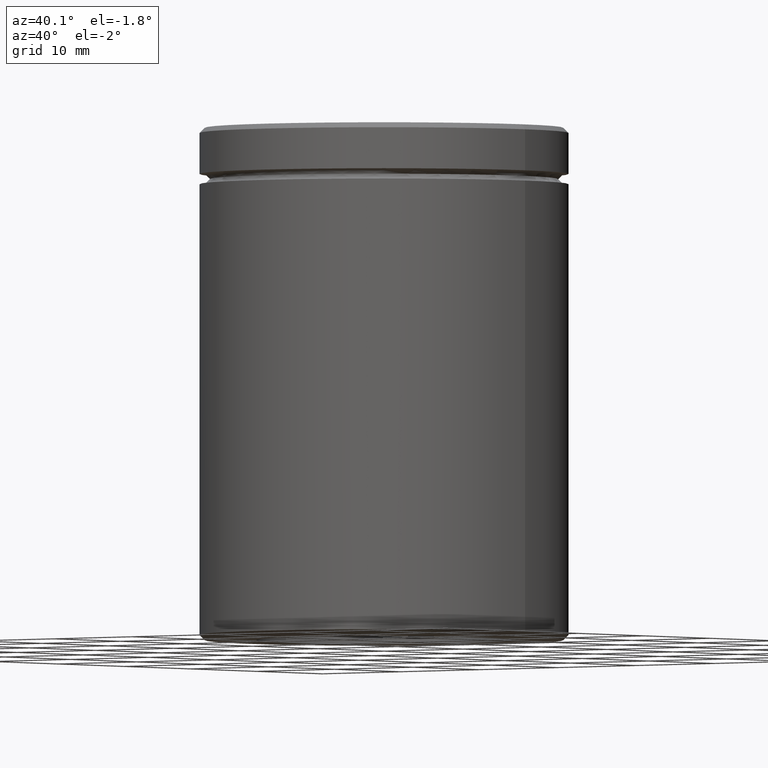
[diagram: clean part render]
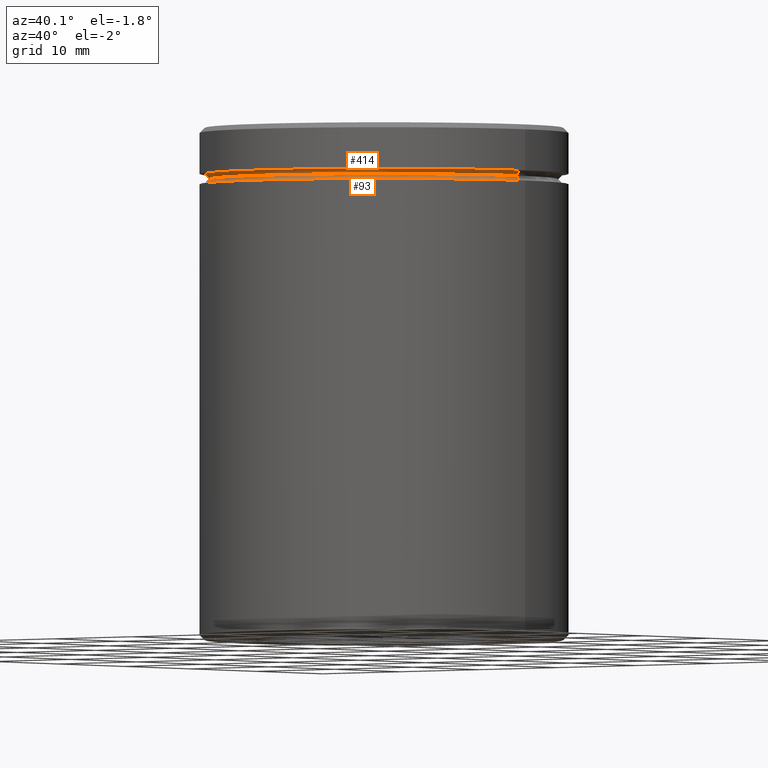
[diagram: same view with one multi-face feature highlighted, each face labeled with its STEP entity id]
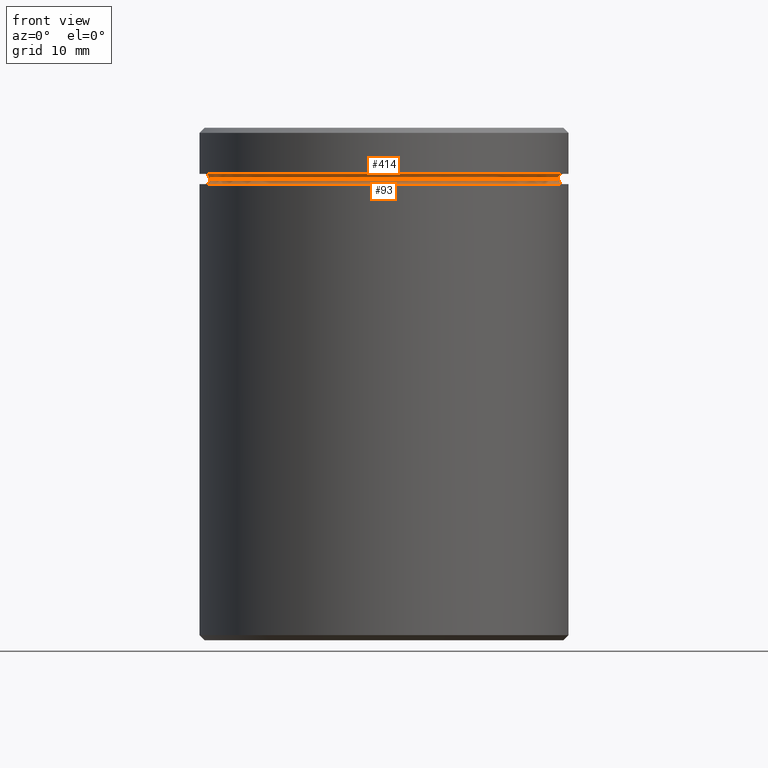
[diagram: same view with one multi-face feature highlighted, each face labeled with its STEP entity id]
A machine part, auxiliary view. The highlighted faces form ONE feature: a constant-radius fillet chain: 2 tangent blend faces with common blend radius 0.5 mm. The faces share edges in the B-rep.
A second angle (front view) of the same feature is appended — it is thin or edge-on in the first view.
Their STEP definitions:
[1] entity #414 (Torus):
#25 = VERTEX_POINT ( 'NONE', #35 ) ;
#32 = DIRECTION ( 'NONE',  ( -1.000000000000000000, 0.000000000000000000, 0.000000000000000000 ) ) ;
#35 = CARTESIAN_POINT ( 'NONE',  ( 17.49999999999999645, 2.143131898507867854E-15, -4.500000000000000888 ) ) ;
#68 = AXIS2_PLACEMENT_3D ( 'NONE', #395, #566, #71 ) ;
#71 = DIRECTION ( 'NONE',  ( 0.000000000000000000, 0.000000000000000000, -1.000000000000000000 ) ) ;
#92 = ORIENTED_EDGE ( 'NONE', *, *, #453, .T. ) ;
#100 = ORIENTED_EDGE ( 'NONE', *, *, #410, .F. ) ;
#102 = EDGE_LOOP ( 'NONE', ( #92, #384, #179, #100 ) ) ;
#110 = CARTESIAN_POINT ( 'NONE',  ( 0.000000000000000000, 0.000000000000000000, -5.000000000000000888 ) ) ;
#126 = DIRECTION ( 'NONE',  ( -1.000000000000000000, -1.224646799147349509E-16, 0.000000000000000000 ) ) ;
#132 = CARTESIAN_POINT ( 'NONE',  ( -17.49999999999999645, 0.000000000000000000, -4.500000000000000888 ) ) ;
#135 = CARTESIAN_POINT ( 'NONE',  ( 16.99999999999999645, 0.000000000000000000, -4.999999999999999112 ) ) ;
#137 = CIRCLE ( 'NONE', #396, 17.49999999999999645 ) ;
#173 = CARTESIAN_POINT ( 'NONE',  ( 0.000000000000000000, 0.000000000000000000, -4.500000000000000888 ) ) ;
#179 = ORIENTED_EDGE ( 'NONE', *, *, #240, .F. ) ;
#201 = FACE_OUTER_BOUND ( 'NONE', #102, .T. ) ;
#212 = EDGE_CURVE ( 'NONE', #554, #25, #522, .T. ) ;
#216 = AXIS2_PLACEMENT_3D ( 'NONE', #400, #266, #460 ) ;
#240 = EDGE_CURVE ( 'NONE', #466, #25, #137, .T. ) ;
#266 = DIRECTION ( 'NONE',  ( -0.000000000000000000, -0.000000000000000000, 1.000000000000000000 ) ) ;
#275 = AXIS2_PLACEMENT_3D ( 'NONE', #355, #528, #126 ) ;
#307 = CIRCLE ( 'NONE', #68, 0.5000000000000004441 ) ;
#310 = VERTEX_POINT ( 'NONE', #516 ) ;
#330 = AXIS2_PLACEMENT_3D ( 'NONE', #110, #477, #32 ) ;
#338 = TOROIDAL_SURFACE ( 'NONE', #330, 17.49999999999999645, 0.5000000000000000000 ) ;
#355 = CARTESIAN_POINT ( 'NONE',  ( 17.49999999999999645, 2.143131898507867854E-15, -5.000000000000000888 ) ) ;
#358 = DIRECTION ( 'NONE',  ( -0.000000000000000000, -0.000000000000000000, 1.000000000000000000 ) ) ;
#384 = ORIENTED_EDGE ( 'NONE', *, *, #212, .T. ) ;
#395 = CARTESIAN_POINT ( 'NONE',  ( -17.49999999999999645, 0.000000000000000000, -5.000000000000000888 ) ) ;
#396 = AXIS2_PLACEMENT_3D ( 'NONE', #173, #358, #495 ) ;
#400 = CARTESIAN_POINT ( 'NONE',  ( 0.000000000000000000, 0.000000000000000000, -4.999999999999999112 ) ) ;
#410 = EDGE_CURVE ( 'NONE', #310, #466, #307, .T. ) ;
#414 = ADVANCED_FACE ( 'NONE', ( #201 ), #338, .F. ) ;
#453 = EDGE_CURVE ( 'NONE', #310, #554, #542, .T. ) ;
#460 = DIRECTION ( 'NONE',  ( 1.000000000000000000, 0.000000000000000000, 0.000000000000000000 ) ) ;
#466 = VERTEX_POINT ( 'NONE', #132 ) ;
#477 = DIRECTION ( 'NONE',  ( 0.000000000000000000, 0.000000000000000000, -1.000000000000000000 ) ) ;
#495 = DIRECTION ( 'NONE',  ( -1.000000000000000000, 0.000000000000000000, 0.000000000000000000 ) ) ;
#516 = CARTESIAN_POINT ( 'NONE',  ( -16.99999999999999645, 2.112515728529184067E-15, -4.999999999999999112 ) ) ;
#522 = CIRCLE ( 'NONE', #275, 0.5000000000000004441 ) ;
#528 = DIRECTION ( 'NONE',  ( -1.224646799147353207E-16, 1.000000000000000000, 0.000000000000000000 ) ) ;
#542 = CIRCLE ( 'NONE', #216, 16.99999999999999645 ) ;
#554 = VERTEX_POINT ( 'NONE', #135 ) ;
#566 = DIRECTION ( 'NONE',  ( -0.000000000000000000, -1.000000000000000000, -0.000000000000000000 ) ) ;
[2] entity #93 (Torus):
#6 = EDGE_CURVE ( 'NONE', #547, #128, #319, .T. ) ;
#29 = CARTESIAN_POINT ( 'NONE',  ( 0.000000000000000000, 0.000000000000000000, -5.500000000000000000 ) ) ;
#40 = FACE_OUTER_BOUND ( 'NONE', #239, .T. ) ;
#93 = ADVANCED_FACE ( 'NONE', ( #40 ), #147, .F. ) ;
#98 = DIRECTION ( 'NONE',  ( 0.000000000000000000, 0.000000000000000000, -1.000000000000000000 ) ) ;
#101 = AXIS2_PLACEMENT_3D ( 'NONE', #159, #479, #399 ) ;
#112 = DIRECTION ( 'NONE',  ( 1.224646799147353207E-16, 1.000000000000000000, 0.000000000000000000 ) ) ;
#128 = VERTEX_POINT ( 'NONE', #486 ) ;
#135 = CARTESIAN_POINT ( 'NONE',  ( 16.99999999999999645, 0.000000000000000000, -4.999999999999999112 ) ) ;
#147 = TOROIDAL_SURFACE ( 'NONE', #101, 17.49999999999999645, 0.5000000000000000000 ) ;
#152 = EDGE_CURVE ( 'NONE', #554, #547, #472, .T. ) ;
#159 = CARTESIAN_POINT ( 'NONE',  ( 0.000000000000000000, 0.000000000000000000, -4.999999999999999112 ) ) ;
#168 = DIRECTION ( 'NONE',  ( 0.000000000000000000, 0.000000000000000000, -1.000000000000000000 ) ) ;
#211 = DIRECTION ( 'NONE',  ( -1.000000000000000000, 1.224646799147349509E-16, 0.000000000000000000 ) ) ;
#216 = AXIS2_PLACEMENT_3D ( 'NONE', #400, #266, #460 ) ;
#226 = AXIS2_PLACEMENT_3D ( 'NONE', #390, #344, #168 ) ;
#239 = EDGE_LOOP ( 'NONE', ( #409, #327, #287, #493 ) ) ;
#262 = AXIS2_PLACEMENT_3D ( 'NONE', #520, #112, #211 ) ;
#266 = DIRECTION ( 'NONE',  ( -0.000000000000000000, -0.000000000000000000, 1.000000000000000000 ) ) ;
#282 = DIRECTION ( 'NONE',  ( 1.000000000000000000, 0.000000000000000000, 0.000000000000000000 ) ) ;
#286 = EDGE_CURVE ( 'NONE', #310, #128, #406, .T. ) ;
#287 = ORIENTED_EDGE ( 'NONE', *, *, #6, .F. ) ;
#310 = VERTEX_POINT ( 'NONE', #516 ) ;
#319 = CIRCLE ( 'NONE', #458, 17.49999999999999645 ) ;
#327 = ORIENTED_EDGE ( 'NONE', *, *, #286, .T. ) ;
#344 = DIRECTION ( 'NONE',  ( 0.000000000000000000, -1.000000000000000000, 0.000000000000000000 ) ) ;
#390 = CARTESIAN_POINT ( 'NONE',  ( 17.49999999999999645, 0.000000000000000000, -4.999999999999999112 ) ) ;
#399 = DIRECTION ( 'NONE',  ( 1.000000000000000000, 0.000000000000000000, 0.000000000000000000 ) ) ;
#400 = CARTESIAN_POINT ( 'NONE',  ( 0.000000000000000000, 0.000000000000000000, -4.999999999999999112 ) ) ;
#406 = CIRCLE ( 'NONE', #262, 0.5000000000000004441 ) ;
#409 = ORIENTED_EDGE ( 'NONE', *, *, #453, .F. ) ;
#453 = EDGE_CURVE ( 'NONE', #310, #554, #542, .T. ) ;
#458 = AXIS2_PLACEMENT_3D ( 'NONE', #29, #98, #282 ) ;
#460 = DIRECTION ( 'NONE',  ( 1.000000000000000000, 0.000000000000000000, 0.000000000000000000 ) ) ;
#472 = CIRCLE ( 'NONE', #226, 0.5000000000000004441 ) ;
#479 = DIRECTION ( 'NONE',  ( -0.000000000000000000, -0.000000000000000000, 1.000000000000000000 ) ) ;
#486 = CARTESIAN_POINT ( 'NONE',  ( -17.49999999999999645, 2.143131898507867854E-15, -5.500000000000000000 ) ) ;
#490 = CARTESIAN_POINT ( 'NONE',  ( 17.49999999999999645, 0.000000000000000000, -5.500000000000000000 ) ) ;
#493 = ORIENTED_EDGE ( 'NONE', *, *, #152, .F. ) ;
#516 = CARTESIAN_POINT ( 'NONE',  ( -16.99999999999999645, 2.112515728529184067E-15, -4.999999999999999112 ) ) ;
#520 = CARTESIAN_POINT ( 'NONE',  ( -17.49999999999999645, 2.143131898507867854E-15, -4.999999999999999112 ) ) ;
#542 = CIRCLE ( 'NONE', #216, 16.99999999999999645 ) ;
#547 = VERTEX_POINT ( 'NONE', #490 ) ;
#554 = VERTEX_POINT ( 'NONE', #135 ) ;